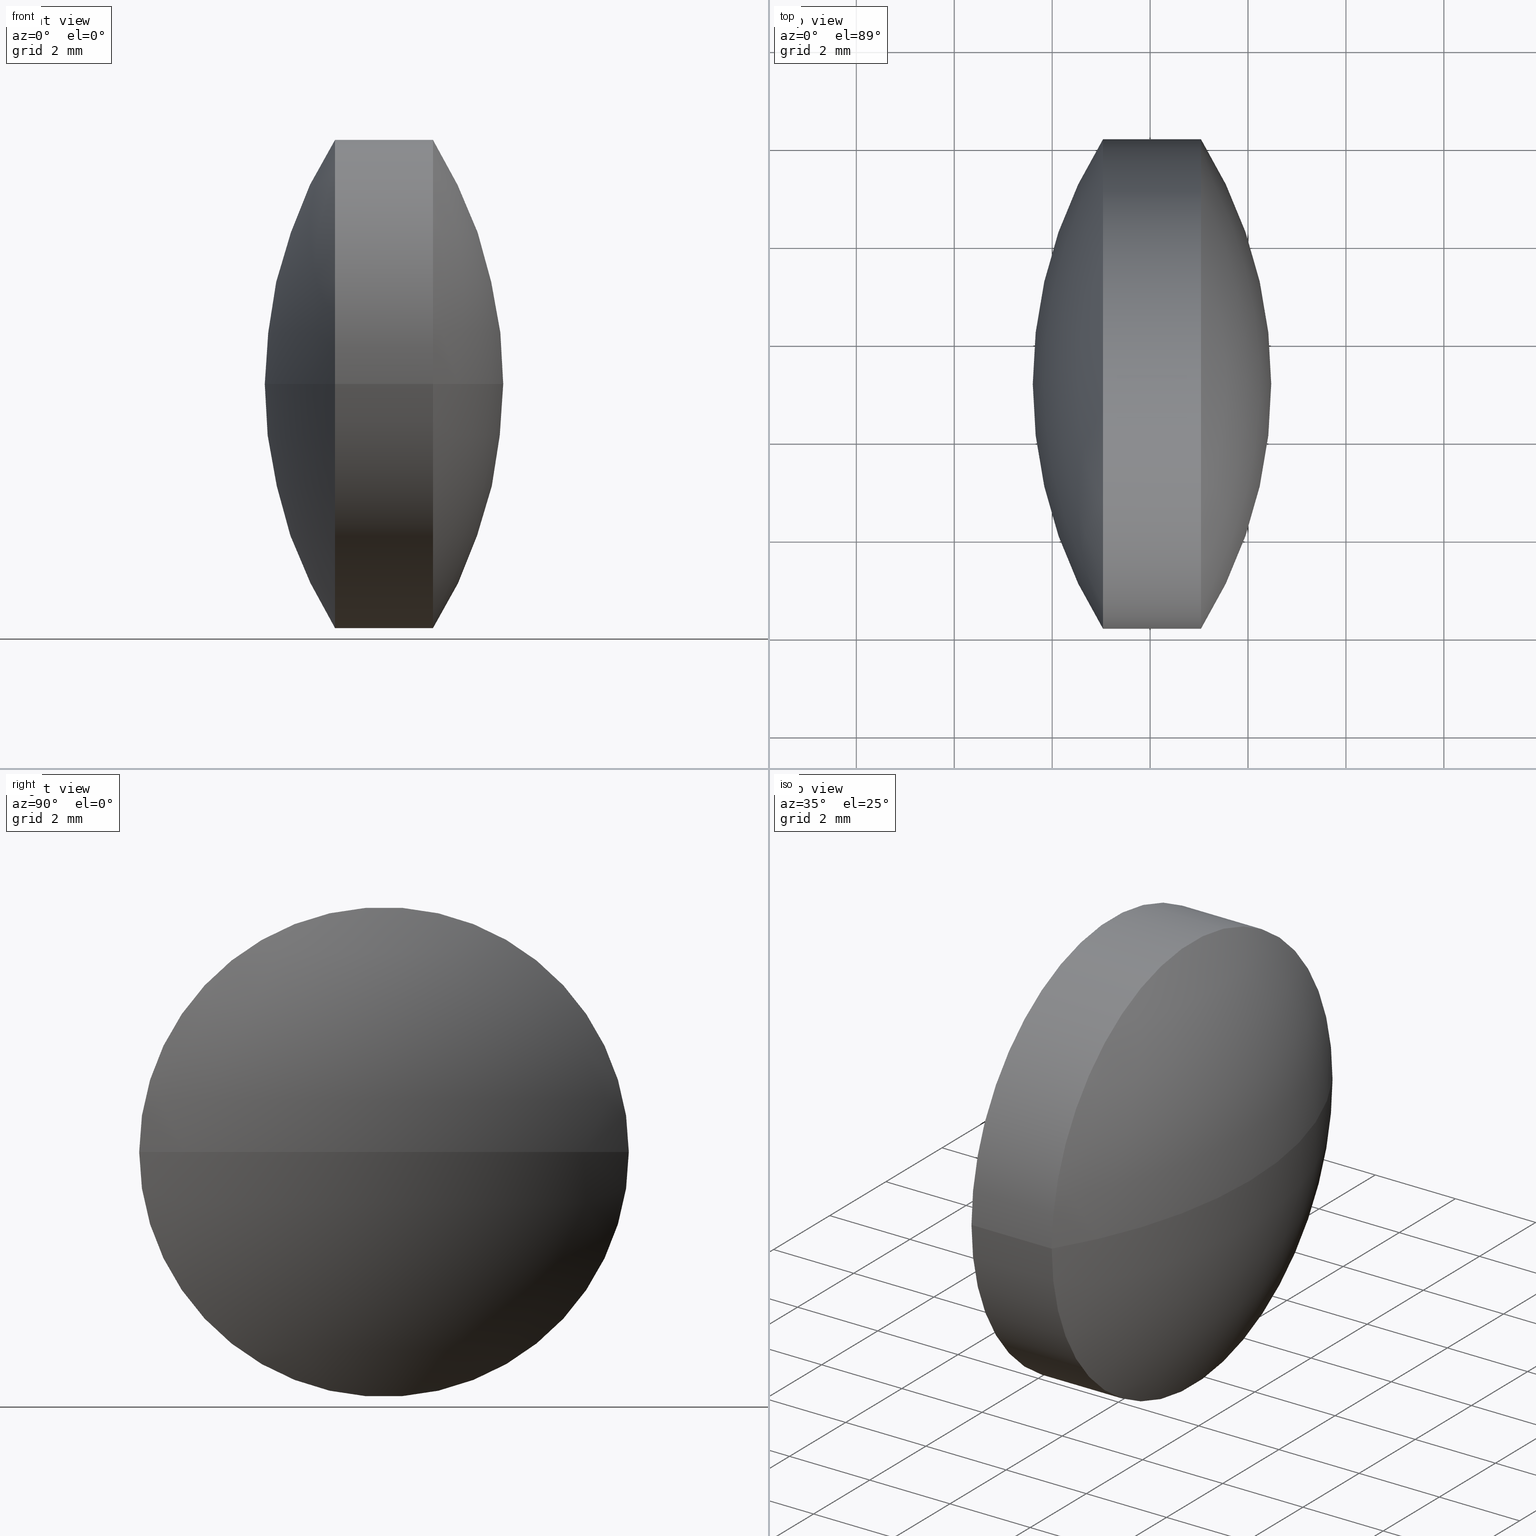
[diagram: canonical four-view strip — front | top / right | iso, engineering-drawing reading convention]
A machine part, canonical four-view strip (front | top / right | iso — engineering-drawing reading convention). The complete STEP part file that produces these views, byte-faithful:
ISO-10303-21;
HEADER;
FILE_DESCRIPTION (( 'STEP AP203' ),
    '1' );
FILE_NAME ('1100009.STEP',
    '2019-06-24T09:28:54',
    ( '' ),
    ( '' ),
    'SwSTEP 2.0',
    'SolidWorks 2016',
    '' );
FILE_SCHEMA (( 'CONFIG_CONTROL_DESIGN' ));
ENDSEC;

DATA;
#1 = ORIENTED_EDGE ( 'NONE', *, *, #65, .T. ) ;
#2 = CC_DESIGN_APPROVAL ( #146, ( #138 ) ) ;
#3 = CARTESIAN_POINT ( 'NONE',  ( 27.04535757267421700, 19.14020197763176500, 0.0000000000000000000 ) ) ;
#4 = LOCAL_TIME ( 17, 28, 54.00000000000000000, #237 ) ;
#5 = AXIS2_PLACEMENT_3D ( 'NONE', #290, #149, #6 ) ;
#6 = DIRECTION ( 'NONE',  ( 1.000000000000000000, 0.0000000000000000000, 0.0000000000000000000 ) ) ;
#7 = FACE_OUTER_BOUND ( 'NONE', #185, .T. ) ;
#8 = DIRECTION ( 'NONE',  ( -0.0000000000000000000, 0.0000000000000000000, -1.000000000000000000 ) ) ;
#9 = LOCAL_TIME ( 17, 28, 54.00000000000000000, #51 ) ;
#10 = MECHANICAL_CONTEXT ( 'NONE', #182, 'mechanical' ) ;
#11 = CC_DESIGN_DATE_AND_TIME_ASSIGNMENT ( #141, #227, ( #132 ) ) ;
#12 = CARTESIAN_POINT ( 'NONE',  ( 33.03865896640255100, 19.14020197763177600, 0.0000000000000000000 ) ) ;
#13 = APPROVAL_ROLE ( '' ) ;
#14 = DATE_AND_TIME ( #17, #225 ) ;
#15 = APPROVAL_STATUS ( 'not_yet_approved' ) ;
#16 = DIRECTION ( 'NONE',  ( 1.822678674337698300E-031, -1.224646799147353200E-016, 1.000000000000000000 ) ) ;
#17 = CALENDAR_DATE ( 2019, 24, 6 ) ;
#18 = CARTESIAN_POINT ( 'NONE',  ( 41.03196036013073900, 19.14020197763178600, 0.0000000000000000000 ) ) ;
#19 = CC_DESIGN_APPROVAL ( #282, ( #219 ) ) ;
#20 = APPROVAL_DATE_TIME ( #303, #146 ) ;
#21 = ORIENTED_EDGE ( 'NONE', *, *, #56, .F. ) ;
#22 = EDGE_CURVE ( 'NONE', #143, #117, #217, .T. ) ;
#23 = ORIENTED_EDGE ( 'NONE', *, *, #22, .F. ) ;
#24 = CARTESIAN_POINT ( 'NONE',  ( 27.04535757267421700, 19.14020197763176500, 0.0000000000000000000 ) ) ;
#25 = PRODUCT_RELATED_PRODUCT_CATEGORY ( 'detail', '', ( #270 ) ) ;
#26 = PERSON_AND_ORGANIZATION ( #135, #169 ) ;
#27 = LOCAL_TIME ( 17, 28, 54.00000000000000000, #83 ) ;
#28 = CIRCLE ( 'NONE', #301, 9.428301393728306200 ) ;
#29 = DIRECTION ( 'NONE',  ( -1.000000000000000000, 0.0000000000000000000, 0.0000000000000000000 ) ) ;
#30 = DIRECTION ( 'NONE',  ( -1.471928741803492900E-015, 1.000000000000000000, 0.0000000000000000000 ) ) ;
#31 = LOCAL_TIME ( 17, 28, 54.00000000000000000, #254 ) ;
#32 = VERTEX_POINT ( 'NONE', #112 ) ;
#33 = DIRECTION ( 'NONE',  ( 1.471928741803474900E-015, -1.000000000000000000, 0.0000000000000000000 ) ) ;
#34 = DIRECTION ( 'NONE',  ( -1.000000000000000000, -1.488330084728689300E-015, -0.0000000000000000000 ) ) ;
#35 = APPROVAL_STATUS ( 'not_yet_approved' ) ;
#36 = EDGE_CURVE ( 'NONE', #32, #249, #113, .T. ) ;
#37 = PERSON_AND_ORGANIZATION ( #135, #169 ) ;
#38 = DIRECTION ( 'NONE',  ( 1.387778780781443900E-015, -1.000000000000000000, 0.0000000000000000000 ) ) ;
#39 = ORIENTED_EDGE ( 'NONE', *, *, #94, .T. ) ;
#40 = APPLICATION_PROTOCOL_DEFINITION ( 'international standard', 'config_control_design', 1994, #182 ) ;
#41 = CC_DESIGN_PERSON_AND_ORGANIZATION_ASSIGNMENT ( #122, #229, ( #79 ) ) ;
#42 = AXIS2_PLACEMENT_3D ( 'NONE', #77, #200, #246 ) ;
#43 = EDGE_LOOP ( 'NONE', ( #265, #226, #23, #281 ) ) ;
#44 = APPROVAL_DATE_TIME ( #234, #193 ) ;
#45 = FACE_OUTER_BOUND ( 'NONE', #120, .T. ) ;
#46 = CYLINDRICAL_SURFACE ( 'NONE', #170, 5.000000000000004400 ) ;
#47 = ADVANCED_FACE ( 'NONE', ( #75 ), #137, .T. ) ;
#48 = ORIENTED_EDGE ( 'NONE', *, *, #36, .F. ) ;
#49 = PRODUCT_DEFINITION_SHAPE ( 'NONE', 'NONE',  #138 ) ;
#50 = DATE_AND_TIME ( #289, #272 ) ;
#51 = COORDINATED_UNIVERSAL_TIME_OFFSET ( 8, 0, .AHEAD. ) ;
#52 = EDGE_CURVE ( 'NONE', #117, #84, #102, .T. ) ;
#53 = ORIENTED_EDGE ( 'NONE', *, *, #52, .F. ) ;
#54 = DIRECTION ( 'NONE',  ( -0.0000000000000000000, 0.0000000000000000000, 1.000000000000000000 ) ) ;
#55 = ORIENTED_EDGE ( 'NONE', *, *, #52, .T. ) ;
#56 = EDGE_CURVE ( 'NONE', #98, #249, #259, .T. ) ;
#57 = CARTESIAN_POINT ( 'NONE',  ( 33.03865896640255800, 14.14020197763176900, -6.123233995736773200E-016 ) ) ;
#58 = AXIS2_PLACEMENT_3D ( 'NONE', #298, #63, #81 ) ;
#59 = APPROVAL_ROLE ( '' ) ;
#60 = CALENDAR_DATE ( 2019, 24, 6 ) ;
#61 = APPROVAL_PERSON_ORGANIZATION ( #74, #282, #209 ) ;
#62 = APPROVAL_STATUS ( 'not_yet_approved' ) ;
#63 = DIRECTION ( 'NONE',  ( -1.000000000000000000, -1.488330084728689300E-015, -0.0000000000000000000 ) ) ;
#64 = APPLICATION_PROTOCOL_DEFINITION ( 'international standard', 'config_control_design', 1994, #158 ) ;
#65 = EDGE_CURVE ( 'NONE', #117, #143, #159, .T. ) ;
#66 = ORIENTED_EDGE ( 'NONE', *, *, #121, .F. ) ;
#67 = APPROVAL_DATE_TIME ( #50, #195 ) ;
#68 = ADVANCED_FACE ( 'NONE', ( #93 ), #46, .T. ) ;
#69 = SPHERICAL_SURFACE ( 'NONE', #161, 9.428301393728306200 ) ;
#70 = ADVANCED_FACE ( 'NONE', ( #283 ), #69, .T. ) ;
#71 = CC_DESIGN_PERSON_AND_ORGANIZATION_ASSIGNMENT ( #184, #292, ( #219 ) ) ;
#72 = COORDINATED_UNIVERSAL_TIME_OFFSET ( 8, 0, .AHEAD. ) ;
#73 = APPROVAL ( #15, 'δָ��' ) ;
#74 = PERSON_AND_ORGANIZATION ( #135, #169 ) ;
#75 = FACE_OUTER_BOUND ( 'NONE', #43, .T. ) ;
#76 = DIRECTION ( 'NONE',  ( -1.822678674337698300E-031, 1.224646799147353200E-016, -1.000000000000000000 ) ) ;
#77 = CARTESIAN_POINT ( 'NONE',  ( 41.03196036013073900, 19.14020197763178600, 0.0000000000000000000 ) ) ;
#78 = APPROVAL_DATE_TIME ( #295, #282 ) ;
#79 = PRODUCT_DEFINITION_FORMATION_WITH_SPECIFIED_SOURCE ( '�κ�', '', #266, .NOT_KNOWN. ) ;
#80 = DATE_TIME_ROLE ( 'creation_date' ) ;
#81 = DIRECTION ( 'NONE',  ( 1.387778780781444500E-015, -1.000000000000000000, 0.0000000000000000000 ) ) ;
#82 = DATE_AND_TIME ( #60, #9 ) ;
#83 = COORDINATED_UNIVERSAL_TIME_OFFSET ( 8, 0, .AHEAD. ) ;
#84 = VERTEX_POINT ( 'NONE', #104 ) ;
#85 = PERSON_AND_ORGANIZATION_ROLE ( 'design_supplier' ) ;
#86 = SECURITY_CLASSIFICATION_LEVEL ( 'unclassified' ) ;
#87 = AXIS2_PLACEMENT_3D ( 'NONE', #218, #76, #151 ) ;
#88 = COORDINATED_UNIVERSAL_TIME_OFFSET ( 8, 0, .AHEAD. ) ;
#89 = ORIENTED_EDGE ( 'NONE', *, *, #124, .T. ) ;
#90 = AXIS2_PLACEMENT_3D ( 'NONE', #241, #172, #261 ) ;
#91 = CALENDAR_DATE ( 2019, 24, 6 ) ;
#92 = SPHERICAL_SURFACE ( 'NONE', #142, 9.428301393728192500 ) ;
#93 = FACE_OUTER_BOUND ( 'NONE', #123, .T. ) ;
#94 = EDGE_CURVE ( 'NONE', #98, #143, #274, .T. ) ;
#95 = CC_DESIGN_PERSON_AND_ORGANIZATION_ASSIGNMENT ( #37, #85, ( #178 ) ) ;
#96 = CARTESIAN_POINT ( 'NONE',  ( 35.03865896640255100, 19.14020197763177600, 0.0000000000000000000 ) ) ;
#97 = CALENDAR_DATE ( 2019, 24, 6 ) ;
#98 = VERTEX_POINT ( 'NONE', #198 ) ;
#99 = CC_DESIGN_PERSON_AND_ORGANIZATION_ASSIGNMENT ( #127, #180, ( #266 ) ) ;
#100 = DATE_AND_TIME ( #97, #264 ) ;
#101 = PERSON_AND_ORGANIZATION ( #135, #169 ) ;
#102 = CIRCLE ( 'NONE', #236, 9.428301393728189000 ) ;
#103 = CARTESIAN_POINT ( 'NONE',  ( 35.03865896640254400, 24.14020197763177200, 6.123233995736756400E-016 ) ) ;
#104 = CARTESIAN_POINT ( 'NONE',  ( 31.60365896640254800, 19.14020197763177200, 0.0000000000000000000 ) ) ;
#105 =( NAMED_UNIT ( * ) PLANE_ANGLE_UNIT ( ) SI_UNIT ( $, .RADIAN. ) );
#106 = DIRECTION ( 'NONE',  ( -0.0000000000000000000, 0.0000000000000000000, 1.000000000000000000 ) ) ;
#107 = DIRECTION ( 'NONE',  ( -1.000000000000000000, -1.488330084728689300E-015, -0.0000000000000000000 ) ) ;
#108 = CARTESIAN_POINT ( 'NONE',  ( 33.03865896640254400, 24.14020197763178300, 0.0000000000000000000 ) ) ;
#109 = CC_DESIGN_PERSON_AND_ORGANIZATION_ASSIGNMENT ( #111, #183, ( #270 ) ) ;
#110 = APPLICATION_CONTEXT ( 'configuration controlled 3d designs of mechanical parts and assemblies' ) ;
#111 = PERSON_AND_ORGANIZATION ( #135, #169 ) ;
#112 = CARTESIAN_POINT ( 'NONE',  ( 36.47365896640251700, 19.14020197763177900, 0.0000000000000000000 ) ) ;
#113 = CIRCLE ( 'NONE', #128, 9.428301393728306200 ) ;
#114 = APPLICATION_PROTOCOL_DEFINITION ( 'international standard', 'config_control_design', 1994, #157 ) ;
#115 = PERSON_AND_ORGANIZATION_ROLE ( 'creator' ) ;
#116 = CALENDAR_DATE ( 2019, 24, 6 ) ;
#117 = VERTEX_POINT ( 'NONE', #108 ) ;
#118 = APPROVAL_PERSON_ORGANIZATION ( #26, #195, #59 ) ;
#119 = APPROVAL_PERSON_ORGANIZATION ( #255, #196, #186 ) ;
#120 = EDGE_LOOP ( 'NONE', ( #66, #232, #55 ) ) ;
#121 = EDGE_CURVE ( 'NONE', #143, #84, #235, .T. ) ;
#122 = PERSON_AND_ORGANIZATION ( #135, #169 ) ;
#123 = EDGE_LOOP ( 'NONE', ( #165, #296, #39, #244 ) ) ;
#124 = EDGE_CURVE ( 'NONE', #32, #98, #28, .T. ) ;
#125 = DIRECTION ( 'NONE',  ( -1.000000000000000000, -1.488330084728689300E-015, -0.0000000000000000000 ) ) ;
#126 = DIRECTION ( 'NONE',  ( 1.387778780781444500E-015, -1.000000000000000000, 0.0000000000000000000 ) ) ;
#127 = PERSON_AND_ORGANIZATION ( #135, #169 ) ;
#128 = AXIS2_PLACEMENT_3D ( 'NONE', #252, #16, #253 ) ;
#129 = LOCAL_TIME ( 17, 28, 54.00000000000000000, #304 ) ;
#130 = DIRECTION ( 'NONE',  ( 1.471928741803474900E-015, -1.000000000000000000, 0.0000000000000000000 ) ) ;
#131 = CALENDAR_DATE ( 2019, 24, 6 ) ;
#132 = SECURITY_CLASSIFICATION ( '', '', #160 ) ;
#133 = SPHERICAL_SURFACE ( 'NONE', #251, 9.428301393728306200 ) ;
#134 = DIRECTION ( 'NONE',  ( 1.000000000000000000, 0.0000000000000000000, 0.0000000000000000000 ) ) ;
#135 = PERSON ( 'δָ��', 'δָ��', 'δָ��', ('δָ��'), ('δָ��'), ('δָ��') ) ;
#136 = APPROVAL_STATUS ( 'not_yet_approved' ) ;
#137 = CYLINDRICAL_SURFACE ( 'NONE', #58, 5.000000000000004400 ) ;
#138 = PRODUCT_DEFINITION ( 'δ֪', '', #178, #152 ) ;
#139 = DATE_TIME_ROLE ( 'classification_date' ) ;
#140 = LOCAL_TIME ( 17, 28, 54.00000000000000000, #179 ) ;
#141 = DATE_AND_TIME ( #268, #197 ) ;
#142 = AXIS2_PLACEMENT_3D ( 'NONE', #288, #8, #30 ) ;
#143 = VERTEX_POINT ( 'NONE', #57 ) ;
#144 = AXIS2_PLACEMENT_3D ( 'NONE', #96, #125, #284 ) ;
#145 = DIRECTION ( 'NONE',  ( -1.000000000000000000, -1.488330084728689300E-015, -0.0000000000000000000 ) ) ;
#146 = APPROVAL ( #136, 'δָ��' ) ;
#147 = AXIS2_PLACEMENT_3D ( 'NONE', #220, #201, #267 ) ;
#148 = CALENDAR_DATE ( 2019, 24, 6 ) ;
#149 = DIRECTION ( 'NONE',  ( 0.0000000000000000000, 0.0000000000000000000, 1.000000000000000000 ) ) ;
#150 = CC_DESIGN_PERSON_AND_ORGANIZATION_ASSIGNMENT ( #164, #223, ( #138 ) ) ;
#151 = DIRECTION ( 'NONE',  ( 0.0000000000000000000, 1.000000000000000000, 1.224646799147353200E-016 ) ) ;
#152 = DESIGN_CONTEXT ( 'detailed design', #110, 'design' ) ;
#153 = PERSON_AND_ORGANIZATION ( #135, #169 ) ;
#154 = CARTESIAN_POINT ( 'NONE',  ( 0.0000000000000000000, 0.0000000000000000000, 0.0000000000000000000 ) ) ;
#155 = CARTESIAN_POINT ( 'NONE',  ( 27.04535757267420900, 24.14020197763177200, 6.123233995736772200E-016 ) ) ;
#156 = CC_DESIGN_DATE_AND_TIME_ASSIGNMENT ( #273, #80, ( #219 ) ) ;
#157 = APPLICATION_CONTEXT ( 'configuration controlled 3d designs of mechanical parts and assemblies' ) ;
#158 = APPLICATION_CONTEXT ( 'configuration controlled 3d designs of mechanical parts and assemblies' ) ;
#159 = CIRCLE ( 'NONE', #90, 5.000000000000006200 ) ;
#160 = SECURITY_CLASSIFICATION_LEVEL ( 'unclassified' ) ;
#161 = AXIS2_PLACEMENT_3D ( 'NONE', #3, #106, #33 ) ;
#162 = DATE_TIME_ROLE ( 'creation_date' ) ;
#163 = CC_DESIGN_DATE_AND_TIME_ASSIGNMENT ( #100, #139, ( #263 ) ) ;
#164 = PERSON_AND_ORGANIZATION ( #135, #169 ) ;
#165 = ORIENTED_EDGE ( 'NONE', *, *, #204, .F. ) ;
#166 = CC_DESIGN_DATE_AND_TIME_ASSIGNMENT ( #242, #162, ( #138 ) ) ;
#167 = ADVANCED_FACE ( 'NONE', ( #45 ), #92, .T. ) ;
#168 = COORDINATED_UNIVERSAL_TIME_OFFSET ( 8, 0, .AHEAD. ) ;
#169 = ORGANIZATION ( 'δָ��', 'δָ��', '' ) ;
#170 = AXIS2_PLACEMENT_3D ( 'NONE', #24, #145, #126 ) ;
#171 = ORIENTED_EDGE ( 'NONE', *, *, #278, .F. ) ;
#172 = DIRECTION ( 'NONE',  ( -1.000000000000000000, -1.488330084728689300E-015, -0.0000000000000000000 ) ) ;
#173 = SHAPE_DEFINITION_REPRESENTATION ( #49, #187 ) ;
#174 = CARTESIAN_POINT ( 'NONE',  ( 27.04535757267422400, 14.14020197763176200, 0.0000000000000000000 ) ) ;
#175 =( GEOMETRIC_REPRESENTATION_CONTEXT ( 3 ) GLOBAL_UNCERTAINTY_ASSIGNED_CONTEXT ( ( #240 ) ) GLOBAL_UNIT_ASSIGNED_CONTEXT ( ( #245, #105, #291 ) ) REPRESENTATION_CONTEXT ( 'NONE', 'WORKASPACE' ) );
#176 = ORIENTED_EDGE ( 'NONE', *, *, #36, .T. ) ;
#177 = DIRECTION ( 'NONE',  ( 0.0000000000000000000, 0.0000000000000000000, -1.000000000000000000 ) ) ;
#178 = PRODUCT_DEFINITION_FORMATION_WITH_SPECIFIED_SOURCE ( '�κ�', '', #270, .NOT_KNOWN. ) ;
#179 = COORDINATED_UNIVERSAL_TIME_OFFSET ( 8, 0, .AHEAD. ) ;
#180 = PERSON_AND_ORGANIZATION_ROLE ( 'design_owner' ) ;
#181 = ORIENTED_EDGE ( 'NONE', *, *, #124, .F. ) ;
#182 = APPLICATION_CONTEXT ( 'configuration controlled 3d designs of mechanical parts and assemblies' ) ;
#183 = PERSON_AND_ORGANIZATION_ROLE ( 'design_owner' ) ;
#184 = PERSON_AND_ORGANIZATION ( #135, #169 ) ;
#185 = EDGE_LOOP ( 'NONE', ( #1, #208, #53 ) ) ;
#186 = APPROVAL_ROLE ( '' ) ;
#187 = ADVANCED_BREP_SHAPE_REPRESENTATION ( '1100009', ( #279, #5 ), #175 ) ;
#188 = PERSON_AND_ORGANIZATION ( #135, #169 ) ;
#189 = PRODUCT_DEFINITION_SHAPE ( 'NONE', 'NONE',  #219 ) ;
#190 = ADVANCED_FACE ( 'NONE', ( #207 ), #133, .T. ) ;
#191 = CC_DESIGN_APPROVAL ( #73, ( #132 ) ) ;
#192 = AXIS2_PLACEMENT_3D ( 'NONE', #154, #287, #134 ) ;
#193 = APPROVAL ( #62, 'δָ��' ) ;
#194 = APPROVAL_PERSON_ORGANIZATION ( #214, #146, #13 ) ;
#195 = APPROVAL ( #250, 'δָ��' ) ;
#196 = APPROVAL ( #297, 'δָ��' ) ;
#197 = LOCAL_TIME ( 17, 28, 54.00000000000000000, #300 ) ;
#198 = CARTESIAN_POINT ( 'NONE',  ( 35.03865896640255800, 14.14020197763178500, 0.0000000000000000000 ) ) ;
#199 = CARTESIAN_POINT ( 'NONE',  ( 27.04535757267421700, 19.14020197763176500, 0.0000000000000000000 ) ) ;
#200 = DIRECTION ( 'NONE',  ( -0.0000000000000000000, 0.0000000000000000000, -1.000000000000000000 ) ) ;
#201 = DIRECTION ( 'NONE',  ( -1.000000000000000000, -1.488330084728689300E-015, -0.0000000000000000000 ) ) ;
#202 = APPROVAL_PERSON_ORGANIZATION ( #262, #73, #230 ) ;
#203 = APPROVAL_ROLE ( '' ) ;
#204 = EDGE_CURVE ( 'NONE', #249, #117, #216, .T. ) ;
#205 = PERSON_AND_ORGANIZATION_ROLE ( 'classification_officer' ) ;
#206 = APPLICATION_PROTOCOL_DEFINITION ( 'international standard', 'config_control_design', 1994, #110 ) ;
#207 = FACE_OUTER_BOUND ( 'NONE', #305, .T. ) ;
#208 = ORIENTED_EDGE ( 'NONE', *, *, #121, .T. ) ;
#209 = APPROVAL_ROLE ( '' ) ;
#210 = SPHERICAL_SURFACE ( 'NONE', #42, 9.428301393728192500 ) ;
#211 = CC_DESIGN_APPROVAL ( #195, ( #178 ) ) ;
#212 = CIRCLE ( 'NONE', #147, 5.000000000000002700 ) ;
#213 = VECTOR ( 'NONE', #34, 1000.000000000000000 ) ;
#214 = PERSON_AND_ORGANIZATION ( #135, #169 ) ;
#215 = DIRECTION ( 'NONE',  ( -0.0000000000000000000, 0.0000000000000000000, 1.000000000000000000 ) ) ;
#216 = LINE ( 'NONE', #155, #280 ) ;
#217 = CIRCLE ( 'NONE', #293, 5.000000000000006200 ) ;
#218 = CARTESIAN_POINT ( 'NONE',  ( 41.03196036013073900, 19.14020197763178600, 0.0000000000000000000 ) ) ;
#219 = PRODUCT_DEFINITION ( 'δ֪', '', #79, #286 ) ;
#220 = CARTESIAN_POINT ( 'NONE',  ( 35.03865896640255100, 19.14020197763177600, 0.0000000000000000000 ) ) ;
#221 = DIRECTION ( 'NONE',  ( -1.000000000000000000, -1.488330084728689300E-015, -0.0000000000000000000 ) ) ;
#222 = CC_DESIGN_APPROVAL ( #193, ( #263 ) ) ;
#223 = PERSON_AND_ORGANIZATION_ROLE ( 'creator' ) ;
#224 = CC_DESIGN_PERSON_AND_ORGANIZATION_ASSIGNMENT ( #294, #115, ( #178 ) ) ;
#225 = LOCAL_TIME ( 17, 28, 54.00000000000000000, #72 ) ;
#226 = ORIENTED_EDGE ( 'NONE', *, *, #204, .T. ) ;
#227 = DATE_TIME_ROLE ( 'classification_date' ) ;
#228 = CC_DESIGN_APPROVAL ( #196, ( #79 ) ) ;
#229 = PERSON_AND_ORGANIZATION_ROLE ( 'creator' ) ;
#230 = APPROVAL_ROLE ( '' ) ;
#231 = APPROVAL_PERSON_ORGANIZATION ( #188, #193, #203 ) ;
#232 = ORIENTED_EDGE ( 'NONE', *, *, #22, .T. ) ;
#233 = CC_DESIGN_SECURITY_CLASSIFICATION ( #132, ( #79 ) ) ;
#234 = DATE_AND_TIME ( #116, #4 ) ;
#235 = CIRCLE ( 'NONE', #87, 9.428301393728192500 ) ;
#236 = AXIS2_PLACEMENT_3D ( 'NONE', #18, #215, #238 ) ;
#237 = COORDINATED_UNIVERSAL_TIME_OFFSET ( 8, 0, .AHEAD. ) ;
#238 = DIRECTION ( 'NONE',  ( 1.000000000000000000, 0.0000000000000000000, 0.0000000000000000000 ) ) ;
#239 = CC_DESIGN_PERSON_AND_ORGANIZATION_ASSIGNMENT ( #153, #275, ( #263 ) ) ;
#240 = UNCERTAINTY_MEASURE_WITH_UNIT (LENGTH_MEASURE( 1.000000000000000100E-005 ), #245, 'distance_accuracy_value', 'NONE');
#241 = CARTESIAN_POINT ( 'NONE',  ( 33.03865896640255100, 19.14020197763177600, 0.0000000000000000000 ) ) ;
#242 = DATE_AND_TIME ( #131, #31 ) ;
#243 = CALENDAR_DATE ( 2019, 24, 6 ) ;
#244 = ORIENTED_EDGE ( 'NONE', *, *, #65, .F. ) ;
#245 =( LENGTH_UNIT ( ) NAMED_UNIT ( * ) SI_UNIT ( .MILLI., .METRE. ) );
#246 = DIRECTION ( 'NONE',  ( -1.471928741803492900E-015, 1.000000000000000000, 0.0000000000000000000 ) ) ;
#247 = MECHANICAL_CONTEXT ( 'NONE', #157, 'mechanical' ) ;
#248 = PERSON_AND_ORGANIZATION_ROLE ( 'design_supplier' ) ;
#249 = VERTEX_POINT ( 'NONE', #103 ) ;
#250 = APPROVAL_STATUS ( 'not_yet_approved' ) ;
#251 = AXIS2_PLACEMENT_3D ( 'NONE', #269, #54, #130 ) ;
#252 = CARTESIAN_POINT ( 'NONE',  ( 27.04535757267421700, 19.14020197763176500, 0.0000000000000000000 ) ) ;
#253 = DIRECTION ( 'NONE',  ( 0.0000000000000000000, -1.000000000000000000, -1.224646799147353200E-016 ) ) ;
#254 = COORDINATED_UNIVERSAL_TIME_OFFSET ( 8, 0, .AHEAD. ) ;
#255 = PERSON_AND_ORGANIZATION ( #135, #169 ) ;
#256 = CC_DESIGN_SECURITY_CLASSIFICATION ( #263, ( #178 ) ) ;
#257 = CC_DESIGN_PERSON_AND_ORGANIZATION_ASSIGNMENT ( #101, #205, ( #132 ) ) ;
#258 = PERSON_AND_ORGANIZATION ( #135, #169 ) ;
#259 = CIRCLE ( 'NONE', #144, 5.000000000000002700 ) ;
#260 = ADVANCED_FACE ( 'NONE', ( #7 ), #210, .T. ) ;
#261 = DIRECTION ( 'NONE',  ( 1.387778780781443900E-015, -1.000000000000000000, 0.0000000000000000000 ) ) ;
#262 = PERSON_AND_ORGANIZATION ( #135, #169 ) ;
#263 = SECURITY_CLASSIFICATION ( '', '', #86 ) ;
#264 = LOCAL_TIME ( 17, 28, 54.00000000000000000, #88 ) ;
#265 = ORIENTED_EDGE ( 'NONE', *, *, #56, .T. ) ;
#266 = PRODUCT ( '1100009', '1100009', '', ( #10 ) ) ;
#267 = DIRECTION ( 'NONE',  ( 1.387778780781444900E-015, -1.000000000000000000, 0.0000000000000000000 ) ) ;
#268 = CALENDAR_DATE ( 2019, 24, 6 ) ;
#269 = CARTESIAN_POINT ( 'NONE',  ( 27.04535757267421700, 19.14020197763176500, 0.0000000000000000000 ) ) ;
#270 = PRODUCT ( '1100009', '1100009', '', ( #247 ) ) ;
#271 = PRODUCT_RELATED_PRODUCT_CATEGORY ( 'detail', '', ( #266 ) ) ;
#272 = LOCAL_TIME ( 17, 28, 54.00000000000000000, #168 ) ;
#273 = DATE_AND_TIME ( #243, #27 ) ;
#274 = LINE ( 'NONE', #174, #213 ) ;
#275 = PERSON_AND_ORGANIZATION_ROLE ( 'classification_officer' ) ;
#276 = APPROVAL_DATE_TIME ( #82, #73 ) ;
#277 = EDGE_LOOP ( 'NONE', ( #181, #176, #21 ) ) ;
#278 = EDGE_CURVE ( 'NONE', #249, #98, #212, .T. ) ;
#279 = MANIFOLD_SOLID_BREP ( '��ת1', #302 ) ;
#280 = VECTOR ( 'NONE', #221, 1000.000000000000000 ) ;
#281 = ORIENTED_EDGE ( 'NONE', *, *, #94, .F. ) ;
#282 = APPROVAL ( #35, 'δָ��' ) ;
#283 = FACE_OUTER_BOUND ( 'NONE', #277, .T. ) ;
#284 = DIRECTION ( 'NONE',  ( 1.387778780781444900E-015, -1.000000000000000000, 0.0000000000000000000 ) ) ;
#285 = APPROVAL_DATE_TIME ( #14, #196 ) ;
#286 = DESIGN_CONTEXT ( 'detailed design', #158, 'design' ) ;
#287 = DIRECTION ( 'NONE',  ( 0.0000000000000000000, 0.0000000000000000000, 1.000000000000000000 ) ) ;
#288 = CARTESIAN_POINT ( 'NONE',  ( 41.03196036013073900, 19.14020197763178600, 0.0000000000000000000 ) ) ;
#289 = CALENDAR_DATE ( 2019, 24, 6 ) ;
#290 = CARTESIAN_POINT ( 'NONE',  ( 0.0000000000000000000, 0.0000000000000000000, 0.0000000000000000000 ) ) ;
#291 =( NAMED_UNIT ( * ) SI_UNIT ( $, .STERADIAN. ) SOLID_ANGLE_UNIT ( ) );
#292 = PERSON_AND_ORGANIZATION_ROLE ( 'creator' ) ;
#293 = AXIS2_PLACEMENT_3D ( 'NONE', #12, #107, #38 ) ;
#294 = PERSON_AND_ORGANIZATION ( #135, #169 ) ;
#295 = DATE_AND_TIME ( #148, #129 ) ;
#296 = ORIENTED_EDGE ( 'NONE', *, *, #278, .T. ) ;
#297 = APPROVAL_STATUS ( 'not_yet_approved' ) ;
#298 = CARTESIAN_POINT ( 'NONE',  ( 27.04535757267421700, 19.14020197763176500, 0.0000000000000000000 ) ) ;
#299 = CC_DESIGN_PERSON_AND_ORGANIZATION_ASSIGNMENT ( #258, #248, ( #79 ) ) ;
#300 = COORDINATED_UNIVERSAL_TIME_OFFSET ( 8, 0, .AHEAD. ) ;
#301 = AXIS2_PLACEMENT_3D ( 'NONE', #199, #177, #29 ) ;
#302 = CLOSED_SHELL ( 'NONE', ( #47, #70, #260, #167, #190, #68 ) ) ;
#303 = DATE_AND_TIME ( #91, #140 ) ;
#304 = COORDINATED_UNIVERSAL_TIME_OFFSET ( 8, 0, .AHEAD. ) ;
#305 = EDGE_LOOP ( 'NONE', ( #48, #89, #171 ) ) ;
ENDSEC;
END-ISO-10303-21;
